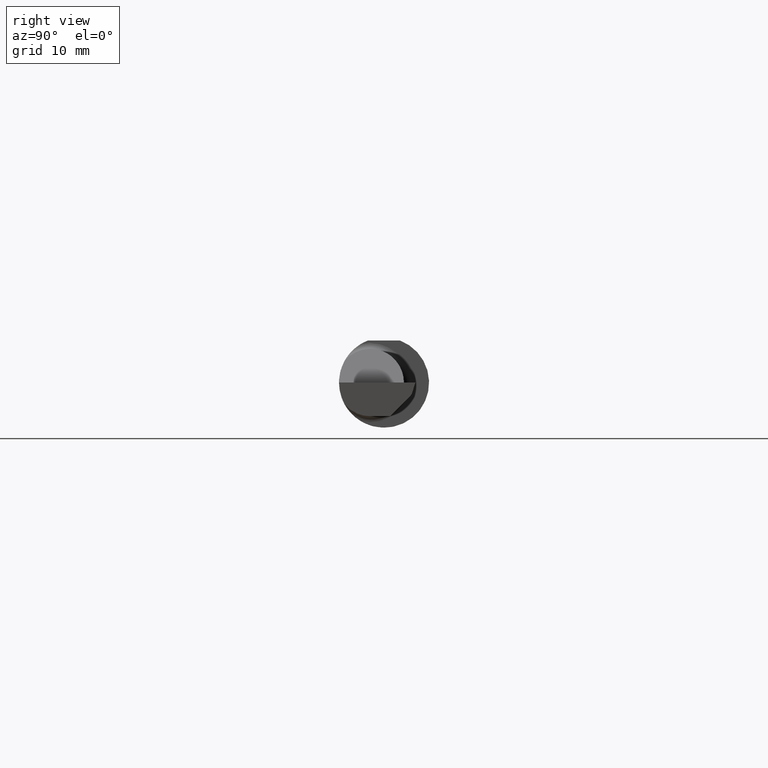
[diagram: clean part render]
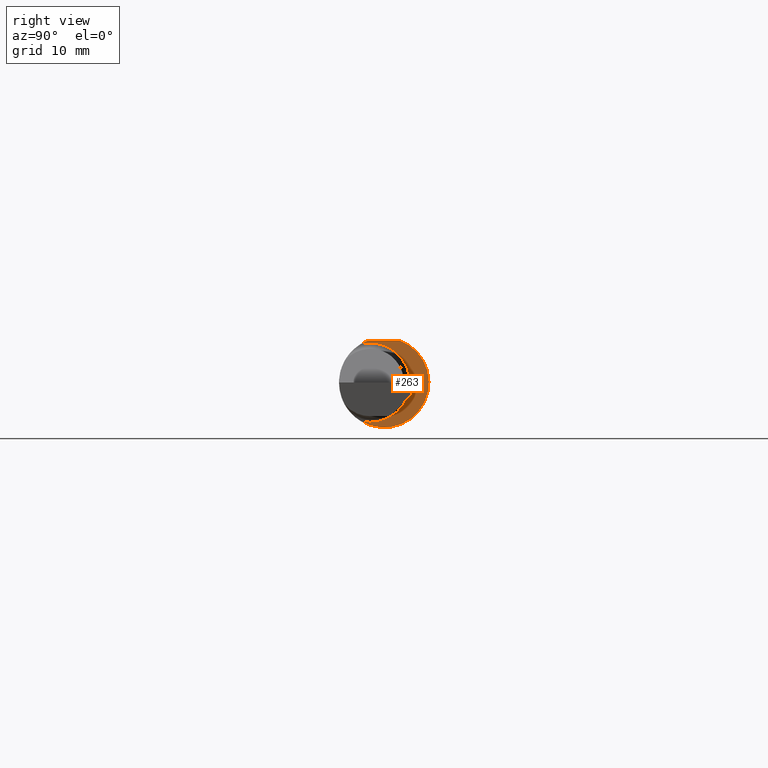
[diagram: same view with one face highlighted and labeled with its STEP entity id]
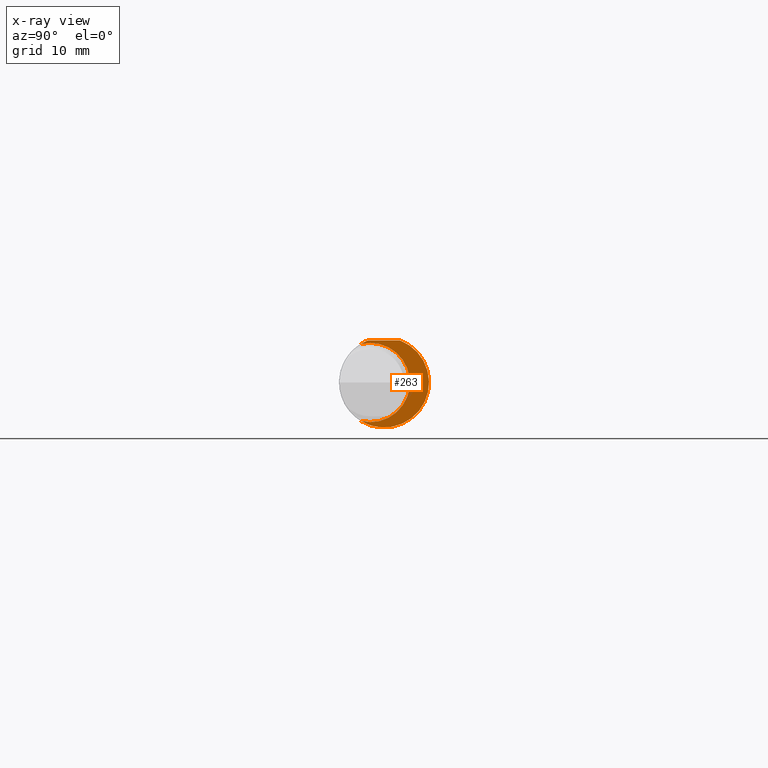
[diagram: x-ray of the same camera — body ghosted, the highlighted face saturated]
A machine part, right view. The second image highlights one B-rep face of the part: STEP entity #263.
The next image is the same camera in x-ray: the body ghosted, the highlighted face saturated — about 3% of this face is hidden behind the body in this view.
In plain terms, the highlighted planar face has unit normal (1, 0, 0).
Its self-contained STEP definition (entity closure, byte-faithful):
#8 = VERTEX_POINT ( 'NONE', #289 ) ;
#10 = CARTESIAN_POINT ( 'NONE',  ( 1.350000000000000089, 0.2373500000000000332, 0.1753499999999999504 ) ) ;
#36 = DIRECTION ( 'NONE',  ( 1.000000000000000000, 5.691349986800549142E-18, 0.0000000000000000000 ) ) ;
#51 = DIRECTION ( 'NONE',  ( 0.0000000000000000000, 1.000000000000000000, 0.0000000000000000000 ) ) ;
#82 = CARTESIAN_POINT ( 'NONE',  ( 1.350000000000000089, -0.05740000000000000657, 0.0000000000000000000 ) ) ;
#102 = FACE_OUTER_BOUND ( 'NONE', #420, .T. ) ;
#109 = VECTOR ( 'NONE', #122, 39.37007874015748143 ) ;
#122 = DIRECTION ( 'NONE',  ( 5.691349986800549142E-18, -1.000000000000000000, 1.438723400918613551E-16 ) ) ;
#130 = CARTESIAN_POINT ( 'NONE',  ( 1.350000000000000089, 0.0000000000000000000, 0.0000000000000000000 ) ) ;
#167 = AXIS2_PLACEMENT_3D ( 'NONE', #245, #36, #51 ) ;
#194 = VERTEX_POINT ( 'NONE', #483 ) ;
#198 = AXIS2_PLACEMENT_3D ( 'NONE', #130, #550, #551 ) ;
#222 = DIRECTION ( 'NONE',  ( -5.691349986800549142E-18, 1.000000000000000000, 0.0000000000000000000 ) ) ;
#225 = DIRECTION ( 'NONE',  ( 1.000000000000000000, 5.691349986800549142E-18, 0.0000000000000000000 ) ) ;
#236 = EDGE_CURVE ( 'NONE', #194, #8, #492, .T. ) ;
#241 = ORIENTED_EDGE ( 'NONE', *, *, #410, .T. ) ;
#245 = CARTESIAN_POINT ( 'NONE',  ( 1.350000000000000089, 0.0000000000000000000, 0.0000000000000000000 ) ) ;
#263 = ADVANCED_FACE ( 'NONE', ( #102 ), #534, .T. ) ;
#289 = CARTESIAN_POINT ( 'NONE',  ( 1.350000000000000089, -0.09715400696864118224, -0.1601908905959924245 ) ) ;
#291 = CIRCLE ( 'NONE', #198, 0.1873499999999999888 ) ;
#293 = ORIENTED_EDGE ( 'NONE', *, *, #380, .T. ) ;
#322 = CARTESIAN_POINT ( 'NONE',  ( 1.350000000000000089, 0.1076499999999999402, 0.0000000000000000000 ) ) ;
#346 = ORIENTED_EDGE ( 'NONE', *, *, #480, .T. ) ;
#353 = ORIENTED_EDGE ( 'NONE', *, *, #236, .T. ) ;
#380 = EDGE_CURVE ( 'NONE', #528, #557, #425, .T. ) ;
#399 = AXIS2_PLACEMENT_3D ( 'NONE', #322, #225, #222 ) ;
#410 = EDGE_CURVE ( 'NONE', #557, #194, #546, .T. ) ;
#420 = EDGE_LOOP ( 'NONE', ( #346, #293, #241, #353 ) ) ;
#425 = LINE ( 'NONE', #10, #109 ) ;
#437 = DIRECTION ( 'NONE',  ( 0.0000000000000000000, -1.000000000000000000, 0.0000000000000000000 ) ) ;
#480 = EDGE_CURVE ( 'NONE', #8, #528, #291, .T. ) ;
#483 = CARTESIAN_POINT ( 'NONE',  ( 1.350000000000000089, -0.09715400696864118224, 0.1601908905959924245 ) ) ;
#492 = CIRCLE ( 'NONE', #599, 0.1650499999999999468 ) ;
#497 = CARTESIAN_POINT ( 'NONE',  ( 1.350000000000000089, -0.06597272163553659363, 0.1753499999999999781 ) ) ;
#528 = VERTEX_POINT ( 'NONE', #562 ) ;
#534 = PLANE ( 'NONE',  #399 ) ;
#546 = CIRCLE ( 'NONE', #167, 0.1873499999999999888 ) ;
#550 = DIRECTION ( 'NONE',  ( 1.000000000000000000, 5.691349986800549142E-18, 0.0000000000000000000 ) ) ;
#551 = DIRECTION ( 'NONE',  ( 0.0000000000000000000, 1.000000000000000000, 0.0000000000000000000 ) ) ;
#557 = VERTEX_POINT ( 'NONE', #497 ) ;
#562 = CARTESIAN_POINT ( 'NONE',  ( 1.350000000000000089, 0.06597272163553680180, 0.1753499999999999781 ) ) ;
#598 = DIRECTION ( 'NONE',  ( -1.000000000000000000, -5.691349986800549142E-18, -0.0000000000000000000 ) ) ;
#599 = AXIS2_PLACEMENT_3D ( 'NONE', #82, #598, #437 ) ;